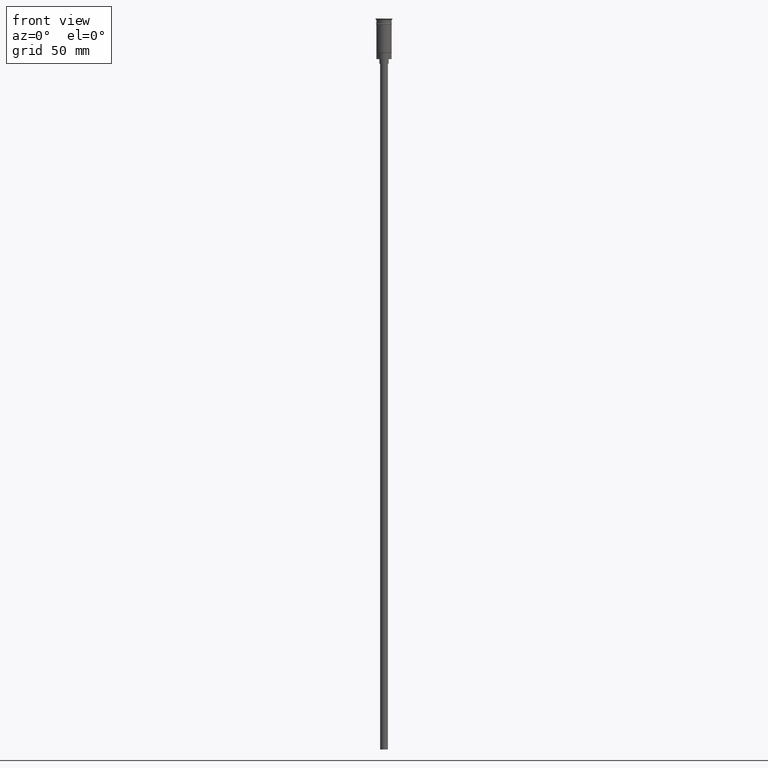
[diagram: clean part render]
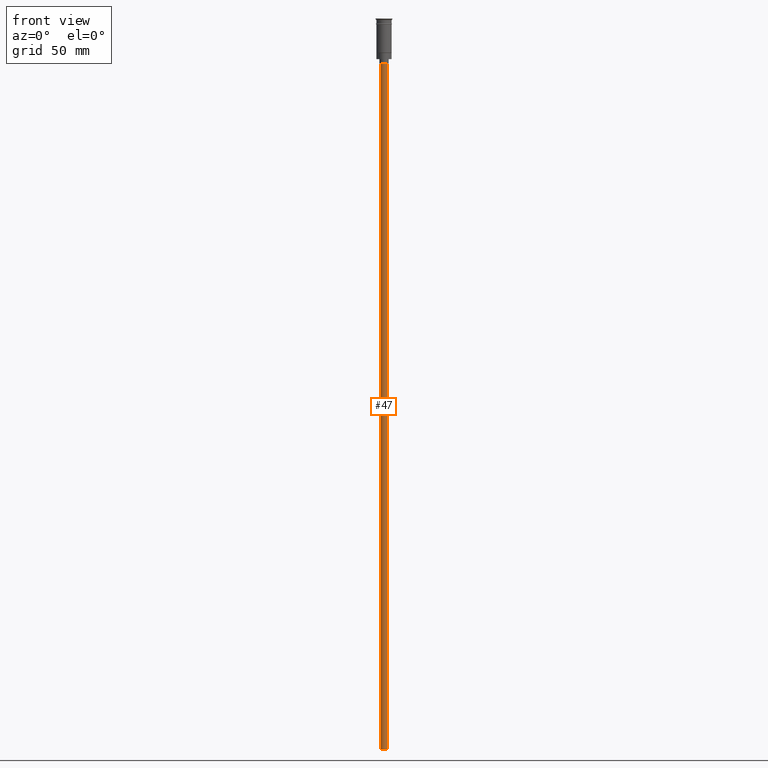
[diagram: same view with one face highlighted and labeled with its STEP entity id]
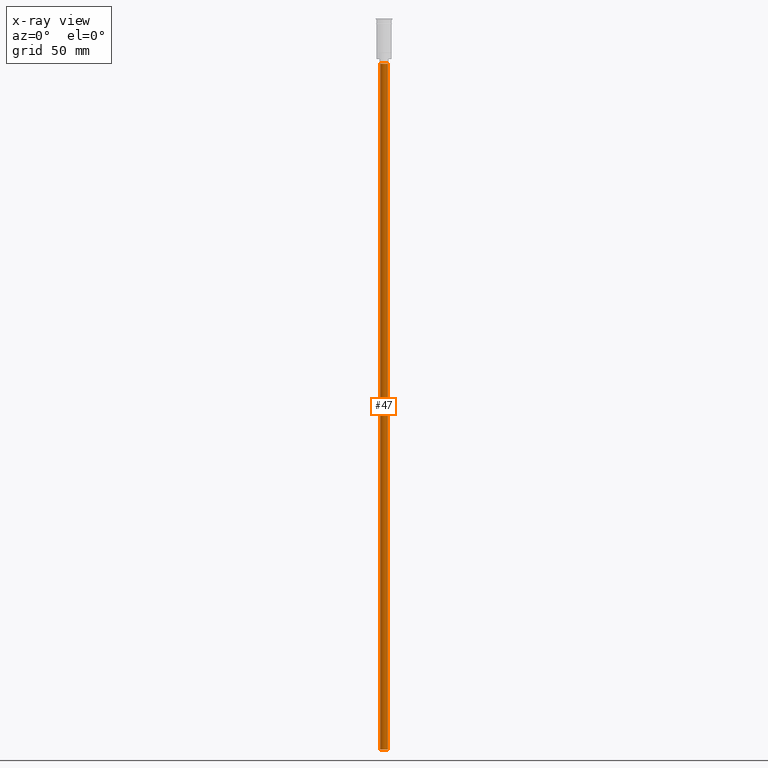
[diagram: x-ray of the same camera — body ghosted, the highlighted face saturated]
A machine part, front view. The second image highlights one B-rep face of the part: STEP entity #47.
The next image is the same camera in x-ray: the body ghosted, the highlighted face saturated — about 0% of this face is hidden behind the body in this view.
In plain terms, the highlighted cylindrical surface (edge-blend (fillet) strip) has radius 2.5 mm, axis along (-0, -0, 1).
Its self-contained STEP definition (entity closure, byte-faithful):
#12 = AXIS2_PLACEMENT_3D ( 'NONE', #789, #1264, #162 ) ;
#39 = VECTOR ( 'NONE', #54, 1000.000000000000000 ) ;
#47 = ADVANCED_FACE ( 'NONE', ( #596 ), #1083, .T. ) ;
#54 = DIRECTION ( 'NONE',  ( -0.000000000000000000, -0.000000000000000000, 1.000000000000000000 ) ) ;
#80 = DIRECTION ( 'NONE',  ( -1.000000000000000000, 0.000000000000000000, 0.000000000000000000 ) ) ;
#87 = DIRECTION ( 'NONE',  ( 0.000000000000000000, 0.000000000000000000, -1.000000000000000000 ) ) ;
#128 = AXIS2_PLACEMENT_3D ( 'NONE', #601, #87, #80 ) ;
#134 = VERTEX_POINT ( 'NONE', #1223 ) ;
#162 = DIRECTION ( 'NONE',  ( -1.000000000000000000, 0.000000000000000000, 0.000000000000000000 ) ) ;
#184 = DIRECTION ( 'NONE',  ( 1.000000000000000000, 0.000000000000000000, 0.000000000000000000 ) ) ;
#197 = EDGE_CURVE ( 'NONE', #134, #451, #570, .T. ) ;
#277 = VECTOR ( 'NONE', #965, 1000.000000000000000 ) ;
#362 = AXIS2_PLACEMENT_3D ( 'NONE', #1382, #810, #184 ) ;
#447 = EDGE_CURVE ( 'NONE', #448, #941, #1285, .T. ) ;
#448 = VERTEX_POINT ( 'NONE', #1291 ) ;
#451 = VERTEX_POINT ( 'NONE', #568 ) ;
#476 = CARTESIAN_POINT ( 'NONE',  ( 2.500000000000000000, 0.000000000000000000, -476.5000000000000568 ) ) ;
#485 = ORIENTED_EDGE ( 'NONE', *, *, #197, .T. ) ;
#568 = CARTESIAN_POINT ( 'NONE',  ( 2.500000000000000000, 0.000000000000000000, -29.50000000000000000 ) ) ;
#570 = LINE ( 'NONE', #476, #277 ) ;
#596 = FACE_OUTER_BOUND ( 'NONE', #1046, .T. ) ;
#601 = CARTESIAN_POINT ( 'NONE',  ( 0.000000000000000000, 0.000000000000000000, -29.50000000000000000 ) ) ;
#789 = CARTESIAN_POINT ( 'NONE',  ( 0.000000000000000000, 0.000000000000000000, -476.5000000000000568 ) ) ;
#796 = CARTESIAN_POINT ( 'NONE',  ( -2.500000000000000000, 3.061616997868383141E-16, -29.50000000000000000 ) ) ;
#810 = DIRECTION ( 'NONE',  ( -0.000000000000000000, -0.000000000000000000, 1.000000000000000000 ) ) ;
#871 = ORIENTED_EDGE ( 'NONE', *, *, #1011, .F. ) ;
#934 = CIRCLE ( 'NONE', #12, 2.500000000000000000 ) ;
#941 = VERTEX_POINT ( 'NONE', #796 ) ;
#965 = DIRECTION ( 'NONE',  ( -0.000000000000000000, -0.000000000000000000, 1.000000000000000000 ) ) ;
#1011 = EDGE_CURVE ( 'NONE', #134, #448, #934, .T. ) ;
#1046 = EDGE_LOOP ( 'NONE', ( #1345, #871, #485, #1224 ) ) ;
#1048 = CARTESIAN_POINT ( 'NONE',  ( -2.500000000000000000, 3.061616997868383141E-16, -476.5000000000000568 ) ) ;
#1083 = CYLINDRICAL_SURFACE ( 'NONE', #362, 2.500000000000000000 ) ;
#1094 = CIRCLE ( 'NONE', #128, 2.500000000000000000 ) ;
#1223 = CARTESIAN_POINT ( 'NONE',  ( 2.500000000000000000, 0.000000000000000000, -476.5000000000000568 ) ) ;
#1224 = ORIENTED_EDGE ( 'NONE', *, *, #1309, .T. ) ;
#1264 = DIRECTION ( 'NONE',  ( 0.000000000000000000, 0.000000000000000000, -1.000000000000000000 ) ) ;
#1285 = LINE ( 'NONE', #1048, #39 ) ;
#1291 = CARTESIAN_POINT ( 'NONE',  ( -2.500000000000000000, 3.061616997868383141E-16, -476.5000000000000568 ) ) ;
#1309 = EDGE_CURVE ( 'NONE', #451, #941, #1094, .T. ) ;
#1345 = ORIENTED_EDGE ( 'NONE', *, *, #447, .F. ) ;
#1382 = CARTESIAN_POINT ( 'NONE',  ( 0.000000000000000000, 0.000000000000000000, -476.5000000000000568 ) ) ;